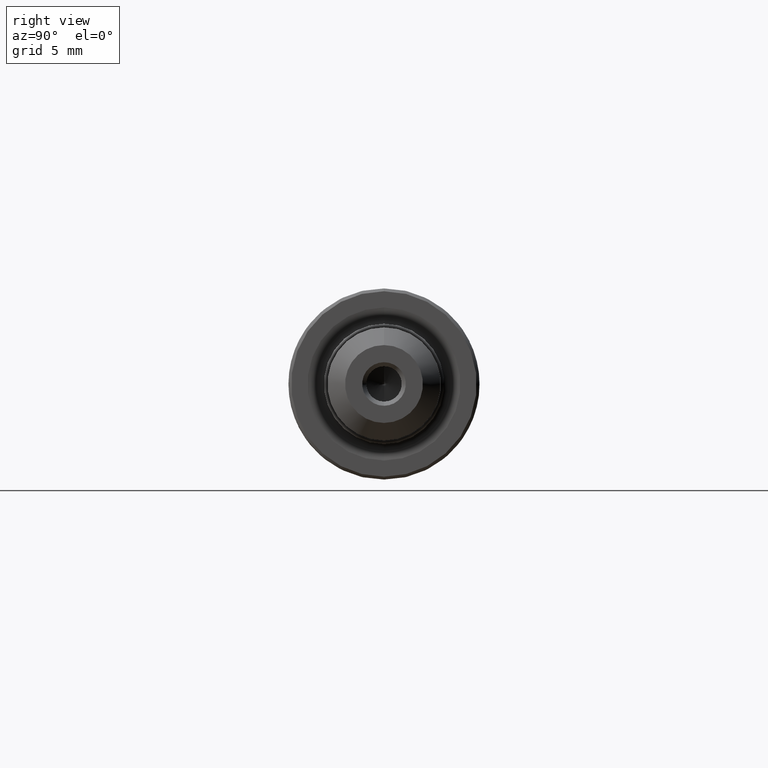
[diagram: clean part render]
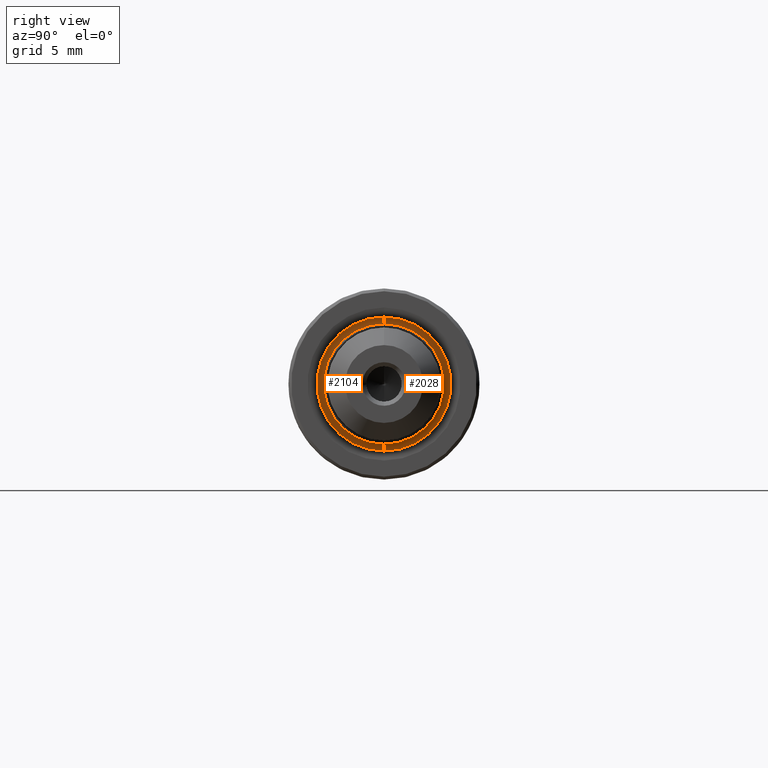
[diagram: same view with one multi-face feature highlighted, each face labeled with its STEP entity id]
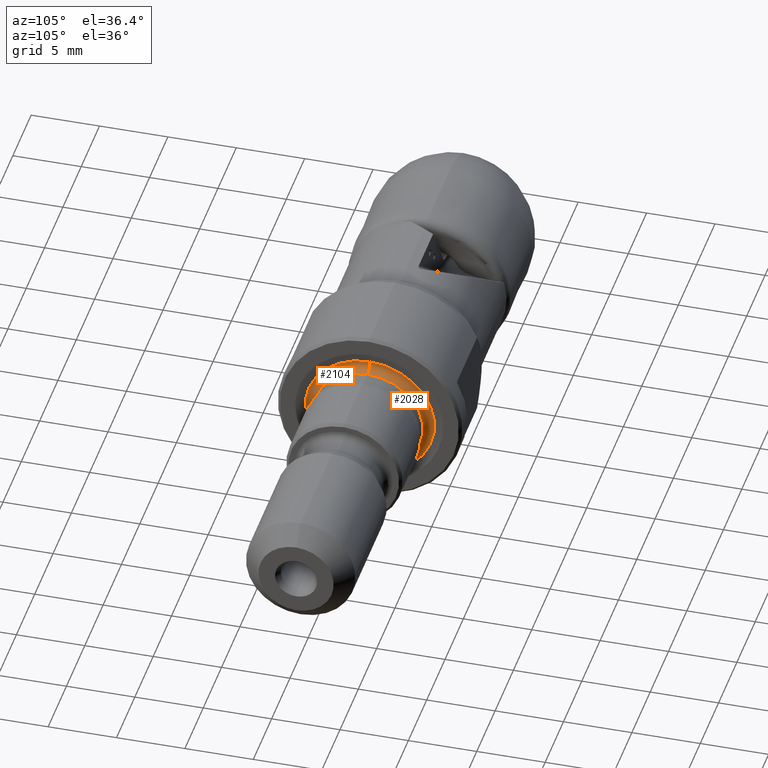
[diagram: same view with one multi-face feature highlighted, each face labeled with its STEP entity id]
A machine part, right view. The highlighted faces form ONE feature: a constant-radius fillet chain: 2 tangent blend faces with common blend radius 0.6 mm. The faces share edges in the B-rep.
A second angle (auxiliary view) of the same feature is appended — it is thin or edge-on in the first view.
Their STEP definitions:
[1] entity #2104 (Torus):
#14 = VERTEX_POINT ( 'NONE', #338 ) ;
#48 = AXIS2_PLACEMENT_3D ( 'NONE', #2808, #3064, #64 ) ;
#64 = DIRECTION ( 'NONE',  ( 0.0000000000000000000, 0.0000000000000000000, 1.000000000000000000 ) ) ;
#100 = CIRCLE ( 'NONE', #48, 4.733503860576043998 ) ;
#269 = ORIENTED_EDGE ( 'NONE', *, *, #1060, .F. ) ;
#338 = CARTESIAN_POINT ( 'NONE',  ( 28.81688218000000390, 5.378344944076436403E-16, -4.050000000000000711 ) ) ;
#579 = CARTESIAN_POINT ( 'NONE',  ( 28.22272133875505773, 0.0000000000000000000, -4.733503860576043998 ) ) ;
#633 = CIRCLE ( 'NONE', #3342, 0.6000000000000015321 ) ;
#673 = DIRECTION ( 'NONE',  ( 0.0000000000000000000, 0.0000000000000000000, -1.000000000000000000 ) ) ;
#692 = CARTESIAN_POINT ( 'NONE',  ( 28.22272133875505773, 6.207120415510387975E-16, 4.733503860576043998 ) ) ;
#1024 = DIRECTION ( 'NONE',  ( -1.000000000000000000, -0.0000000000000000000, -0.0000000000000000000 ) ) ;
#1047 = DIRECTION ( 'NONE',  ( -1.000000000000000000, -0.0000000000000000000, -0.0000000000000000000 ) ) ;
#1060 = EDGE_CURVE ( 'NONE', #3265, #2688, #100, .T. ) ;
#1748 = AXIS2_PLACEMENT_3D ( 'NONE', #3769, #1047, #2575 ) ;
#1774 = CIRCLE ( 'NONE', #3403, 4.050000000000000711 ) ;
#1949 = CARTESIAN_POINT ( 'NONE',  ( 28.81688218000000035, 5.694607616035192869E-16, -4.650000000000000355 ) ) ;
#2030 = CIRCLE ( 'NONE', #2528, 0.6000000000000015321 ) ;
#2104 = ADVANCED_FACE ( 'NONE', ( #3163 ), #2447, .F. ) ;
#2221 = CARTESIAN_POINT ( 'NONE',  ( 28.81688218000000390, 0.0000000000000000000, 4.050000000000000711 ) ) ;
#2440 = ORIENTED_EDGE ( 'NONE', *, *, #3792, .F. ) ;
#2447 = TOROIDAL_SURFACE ( 'NONE', #1748, 4.650000000000000355, 0.6000000000000015321 ) ;
#2528 = AXIS2_PLACEMENT_3D ( 'NONE', #2768, #3374, #673 ) ;
#2575 = DIRECTION ( 'NONE',  ( 0.0000000000000000000, 0.0000000000000000000, 1.000000000000000000 ) ) ;
#2688 = VERTEX_POINT ( 'NONE', #692 ) ;
#2717 = EDGE_CURVE ( 'NONE', #3265, #14, #633, .T. ) ;
#2768 = CARTESIAN_POINT ( 'NONE',  ( 28.81688218000000035, 0.0000000000000000000, 4.650000000000000355 ) ) ;
#2808 = CARTESIAN_POINT ( 'NONE',  ( 28.22272133875505773, 0.0000000000000000000, 0.0000000000000000000 ) ) ;
#3064 = DIRECTION ( 'NONE',  ( -1.000000000000000000, -0.0000000000000000000, -0.0000000000000000000 ) ) ;
#3130 = ORIENTED_EDGE ( 'NONE', *, *, #3534, .T. ) ;
#3163 = FACE_OUTER_BOUND ( 'NONE', #3502, .T. ) ;
#3265 = VERTEX_POINT ( 'NONE', #579 ) ;
#3298 = VERTEX_POINT ( 'NONE', #2221 ) ;
#3342 = AXIS2_PLACEMENT_3D ( 'NONE', #1949, #3713, #3427 ) ;
#3374 = DIRECTION ( 'NONE',  ( 0.0000000000000000000, -1.000000000000000000, 0.0000000000000000000 ) ) ;
#3403 = AXIS2_PLACEMENT_3D ( 'NONE', #3808, #1024, #3450 ) ;
#3414 = ORIENTED_EDGE ( 'NONE', *, *, #2717, .T. ) ;
#3427 = DIRECTION ( 'NONE',  ( 0.0000000000000000000, -1.224646799147353207E-16, 1.000000000000000000 ) ) ;
#3450 = DIRECTION ( 'NONE',  ( 0.0000000000000000000, 0.0000000000000000000, 1.000000000000000000 ) ) ;
#3502 = EDGE_LOOP ( 'NONE', ( #269, #3414, #3130, #2440 ) ) ;
#3534 = EDGE_CURVE ( 'NONE', #14, #3298, #1774, .T. ) ;
#3713 = DIRECTION ( 'NONE',  ( -0.0000000000000000000, 1.000000000000000000, 1.224646799147353207E-16 ) ) ;
#3769 = CARTESIAN_POINT ( 'NONE',  ( 28.81688218000000035, 0.0000000000000000000, 0.0000000000000000000 ) ) ;
#3792 = EDGE_CURVE ( 'NONE', #2688, #3298, #2030, .T. ) ;
#3808 = CARTESIAN_POINT ( 'NONE',  ( 28.81688218000000390, 0.0000000000000000000, 0.0000000000000000000 ) ) ;
[2] entity #2028 (Torus):
#14 = VERTEX_POINT ( 'NONE', #338 ) ;
#108 = CIRCLE ( 'NONE', #2276, 4.733503860576043998 ) ;
#166 = CARTESIAN_POINT ( 'NONE',  ( 28.22272133875505773, 0.0000000000000000000, 0.0000000000000000000 ) ) ;
#224 = DIRECTION ( 'NONE',  ( -1.000000000000000000, -0.0000000000000000000, -0.0000000000000000000 ) ) ;
#338 = CARTESIAN_POINT ( 'NONE',  ( 28.81688218000000390, 5.378344944076436403E-16, -4.050000000000000711 ) ) ;
#495 = AXIS2_PLACEMENT_3D ( 'NONE', #1742, #224, #2392 ) ;
#579 = CARTESIAN_POINT ( 'NONE',  ( 28.22272133875505773, 0.0000000000000000000, -4.733503860576043998 ) ) ;
#633 = CIRCLE ( 'NONE', #3342, 0.6000000000000015321 ) ;
#673 = DIRECTION ( 'NONE',  ( 0.0000000000000000000, 0.0000000000000000000, -1.000000000000000000 ) ) ;
#692 = CARTESIAN_POINT ( 'NONE',  ( 28.22272133875505773, 6.207120415510387975E-16, 4.733503860576043998 ) ) ;
#796 = DIRECTION ( 'NONE',  ( 0.0000000000000000000, 0.0000000000000000000, 1.000000000000000000 ) ) ;
#923 = ORIENTED_EDGE ( 'NONE', *, *, #2439, .T. ) ;
#1385 = DIRECTION ( 'NONE',  ( -1.000000000000000000, -0.0000000000000000000, -0.0000000000000000000 ) ) ;
#1730 = FACE_OUTER_BOUND ( 'NONE', #2132, .T. ) ;
#1742 = CARTESIAN_POINT ( 'NONE',  ( 28.81688218000000390, 0.0000000000000000000, 0.0000000000000000000 ) ) ;
#1878 = EDGE_CURVE ( 'NONE', #2688, #3265, #108, .T. ) ;
#1949 = CARTESIAN_POINT ( 'NONE',  ( 28.81688218000000035, 5.694607616035192869E-16, -4.650000000000000355 ) ) ;
#2028 = ADVANCED_FACE ( 'NONE', ( #1730 ), #2846, .F. ) ;
#2030 = CIRCLE ( 'NONE', #2528, 0.6000000000000015321 ) ;
#2120 = ORIENTED_EDGE ( 'NONE', *, *, #2717, .F. ) ;
#2132 = EDGE_LOOP ( 'NONE', ( #2120, #3558, #3255, #923 ) ) ;
#2221 = CARTESIAN_POINT ( 'NONE',  ( 28.81688218000000390, 0.0000000000000000000, 4.050000000000000711 ) ) ;
#2276 = AXIS2_PLACEMENT_3D ( 'NONE', #166, #1385, #796 ) ;
#2301 = DIRECTION ( 'NONE',  ( 0.0000000000000000000, 0.0000000000000000000, 1.000000000000000000 ) ) ;
#2392 = DIRECTION ( 'NONE',  ( 0.0000000000000000000, 0.0000000000000000000, 1.000000000000000000 ) ) ;
#2439 = EDGE_CURVE ( 'NONE', #3298, #14, #3260, .T. ) ;
#2528 = AXIS2_PLACEMENT_3D ( 'NONE', #2768, #3374, #673 ) ;
#2617 = DIRECTION ( 'NONE',  ( -1.000000000000000000, -0.0000000000000000000, -0.0000000000000000000 ) ) ;
#2688 = VERTEX_POINT ( 'NONE', #692 ) ;
#2717 = EDGE_CURVE ( 'NONE', #3265, #14, #633, .T. ) ;
#2768 = CARTESIAN_POINT ( 'NONE',  ( 28.81688218000000035, 0.0000000000000000000, 4.650000000000000355 ) ) ;
#2846 = TOROIDAL_SURFACE ( 'NONE', #3353, 4.650000000000000355, 0.6000000000000015321 ) ;
#3255 = ORIENTED_EDGE ( 'NONE', *, *, #3792, .T. ) ;
#3260 = CIRCLE ( 'NONE', #495, 4.050000000000000711 ) ;
#3265 = VERTEX_POINT ( 'NONE', #579 ) ;
#3298 = VERTEX_POINT ( 'NONE', #2221 ) ;
#3342 = AXIS2_PLACEMENT_3D ( 'NONE', #1949, #3713, #3427 ) ;
#3353 = AXIS2_PLACEMENT_3D ( 'NONE', #3747, #2617, #2301 ) ;
#3374 = DIRECTION ( 'NONE',  ( 0.0000000000000000000, -1.000000000000000000, 0.0000000000000000000 ) ) ;
#3427 = DIRECTION ( 'NONE',  ( 0.0000000000000000000, -1.224646799147353207E-16, 1.000000000000000000 ) ) ;
#3558 = ORIENTED_EDGE ( 'NONE', *, *, #1878, .F. ) ;
#3713 = DIRECTION ( 'NONE',  ( -0.0000000000000000000, 1.000000000000000000, 1.224646799147353207E-16 ) ) ;
#3747 = CARTESIAN_POINT ( 'NONE',  ( 28.81688218000000035, 0.0000000000000000000, 0.0000000000000000000 ) ) ;
#3792 = EDGE_CURVE ( 'NONE', #2688, #3298, #2030, .T. ) ;